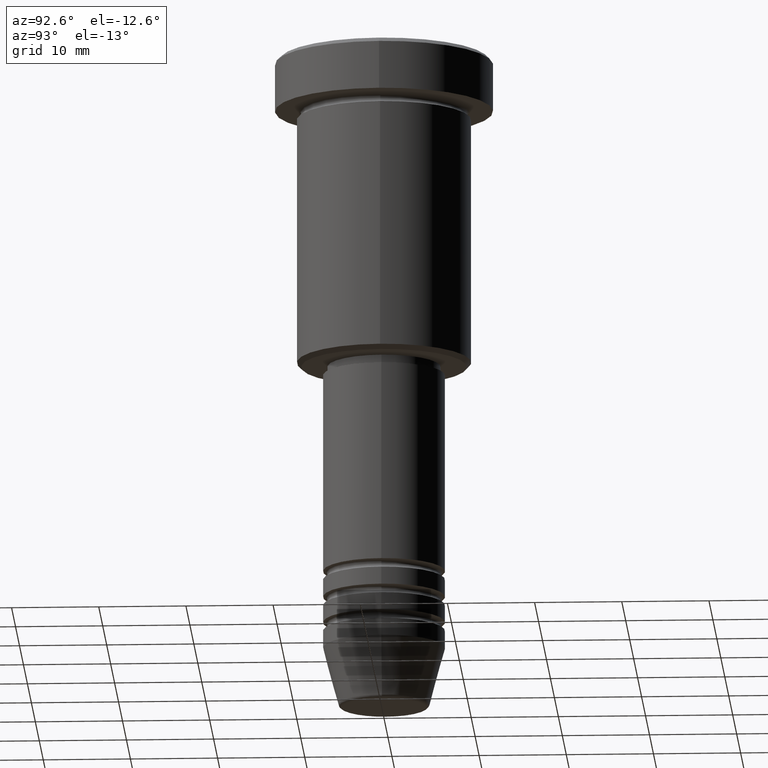
[diagram: clean part render]
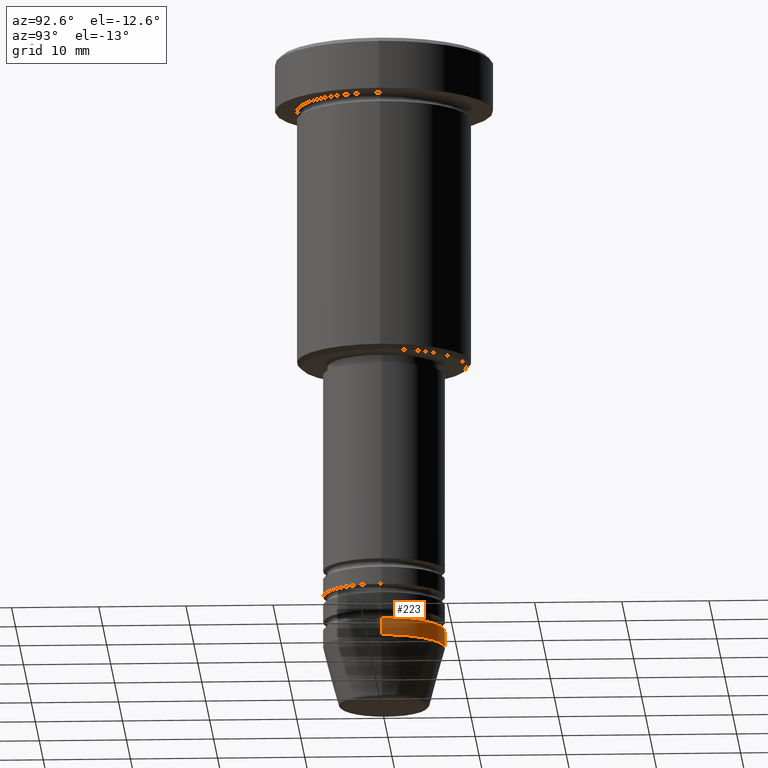
[diagram: same view with one face highlighted and labeled with its STEP entity id]
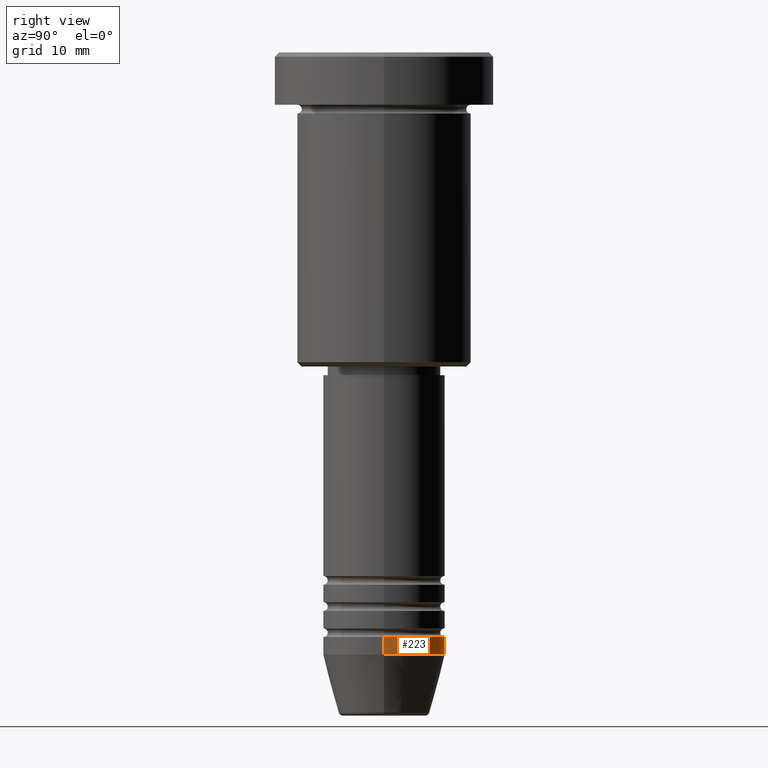
[diagram: same view with one face highlighted and labeled with its STEP entity id]
A machine part, auxiliary view. The second image highlights one B-rep face of the part: STEP entity #223.
A second angle (right view) of the same face is appended — the face is thin or edge-on in the first view.
In plain terms, the highlighted cylindrical surface (partial cylindrical patch) has radius 7 mm, axis along (-0, -0, 1).
Its self-contained STEP definition (entity closure, byte-faithful):
#24 = AXIS2_PLACEMENT_3D ( 'NONE', #1055, #56, #35 ) ;
#35 = DIRECTION ( 'NONE',  ( 1.000000000000000000, 0.000000000000000000, 0.000000000000000000 ) ) ;
#47 = CIRCLE ( 'NONE', #250, 7.000000000000000000 ) ;
#56 = DIRECTION ( 'NONE',  ( -0.000000000000000000, -0.000000000000000000, 1.000000000000000000 ) ) ;
#67 = AXIS2_PLACEMENT_3D ( 'NONE', #740, #1073, #986 ) ;
#93 = CIRCLE ( 'NONE', #24, 7.000000000000000000 ) ;
#107 = VECTOR ( 'NONE', #591, 1000.000000000000000 ) ;
#154 = DIRECTION ( 'NONE',  ( -0.000000000000000000, -0.000000000000000000, 1.000000000000000000 ) ) ;
#223 = ADVANCED_FACE ( 'NONE', ( #281 ), #908, .T. ) ;
#234 = LINE ( 'NONE', #1148, #107 ) ;
#250 = AXIS2_PLACEMENT_3D ( 'NONE', #732, #154, #518 ) ;
#281 = FACE_OUTER_BOUND ( 'NONE', #1003, .T. ) ;
#361 = VERTEX_POINT ( 'NONE', #832 ) ;
#379 = LINE ( 'NONE', #844, #410 ) ;
#410 = VECTOR ( 'NONE', #753, 1000.000000000000000 ) ;
#420 = ORIENTED_EDGE ( 'NONE', *, *, #984, .F. ) ;
#452 = VERTEX_POINT ( 'NONE', #573 ) ;
#518 = DIRECTION ( 'NONE',  ( 1.000000000000000000, 0.000000000000000000, 0.000000000000000000 ) ) ;
#540 = EDGE_CURVE ( 'NONE', #656, #361, #234, .T. ) ;
#573 = CARTESIAN_POINT ( 'NONE',  ( 7.000000000000000000, 0.000000000000000000, -67.00000000000000000 ) ) ;
#591 = DIRECTION ( 'NONE',  ( -0.000000000000000000, -0.000000000000000000, 1.000000000000000000 ) ) ;
#656 = VERTEX_POINT ( 'NONE', #1139 ) ;
#732 = CARTESIAN_POINT ( 'NONE',  ( 0.000000000000000000, 0.000000000000000000, -69.00000000000000000 ) ) ;
#740 = CARTESIAN_POINT ( 'NONE',  ( 0.000000000000000000, 0.000000000000000000, 0.000000000000000000 ) ) ;
#753 = DIRECTION ( 'NONE',  ( -0.000000000000000000, -0.000000000000000000, 1.000000000000000000 ) ) ;
#832 = CARTESIAN_POINT ( 'NONE',  ( -7.000000000000000000, 8.572527594031473190E-16, -67.00000000000000000 ) ) ;
#841 = VERTEX_POINT ( 'NONE', #1005 ) ;
#844 = CARTESIAN_POINT ( 'NONE',  ( 7.000000000000000000, 0.000000000000000000, 0.000000000000000000 ) ) ;
#908 = CYLINDRICAL_SURFACE ( 'NONE', #67, 7.000000000000000000 ) ;
#924 = EDGE_CURVE ( 'NONE', #841, #452, #379, .T. ) ;
#926 = ORIENTED_EDGE ( 'NONE', *, *, #924, .F. ) ;
#930 = ORIENTED_EDGE ( 'NONE', *, *, #1065, .T. ) ;
#984 = EDGE_CURVE ( 'NONE', #452, #361, #93, .T. ) ;
#986 = DIRECTION ( 'NONE',  ( 1.000000000000000000, 0.000000000000000000, 0.000000000000000000 ) ) ;
#1003 = EDGE_LOOP ( 'NONE', ( #930, #1172, #420, #926 ) ) ;
#1005 = CARTESIAN_POINT ( 'NONE',  ( 7.000000000000000000, 0.000000000000000000, -69.00000000000000000 ) ) ;
#1055 = CARTESIAN_POINT ( 'NONE',  ( 0.000000000000000000, 0.000000000000000000, -67.00000000000000000 ) ) ;
#1065 = EDGE_CURVE ( 'NONE', #841, #656, #47, .T. ) ;
#1073 = DIRECTION ( 'NONE',  ( -0.000000000000000000, -0.000000000000000000, 1.000000000000000000 ) ) ;
#1139 = CARTESIAN_POINT ( 'NONE',  ( -7.000000000000000000, 8.572527594031473190E-16, -69.00000000000000000 ) ) ;
#1148 = CARTESIAN_POINT ( 'NONE',  ( -7.000000000000000000, 8.572527594031473190E-16, 0.000000000000000000 ) ) ;
#1172 = ORIENTED_EDGE ( 'NONE', *, *, #540, .T. ) ;